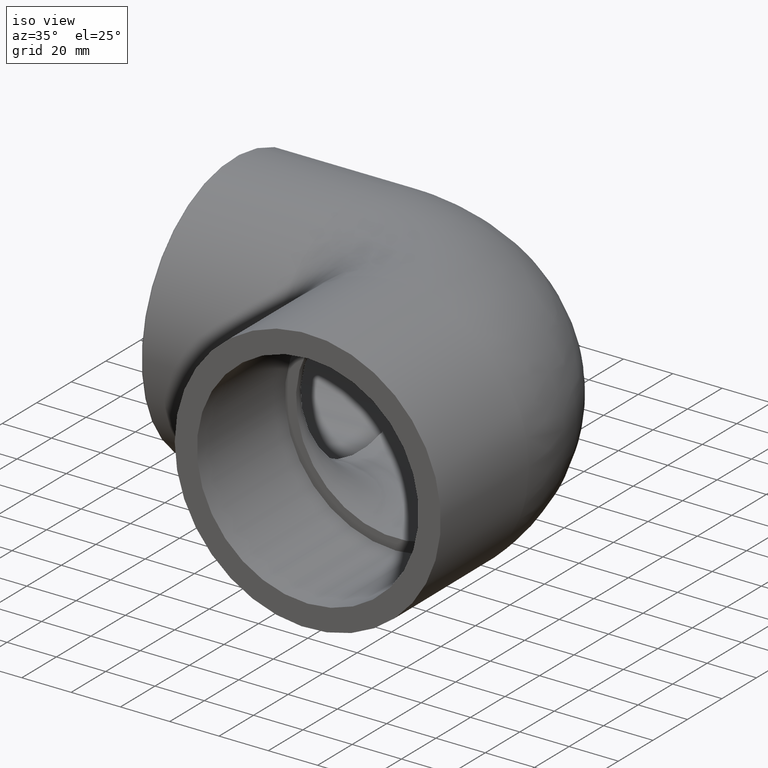
[diagram: clean part render]
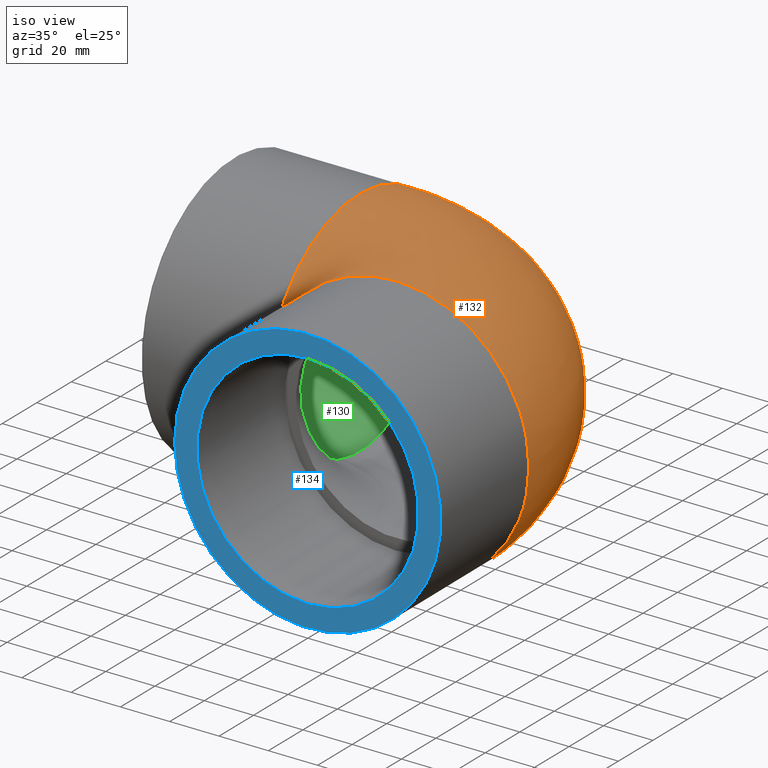
[diagram: same view with three faces highlighted in distinct colors, each labeled with its STEP entity id]
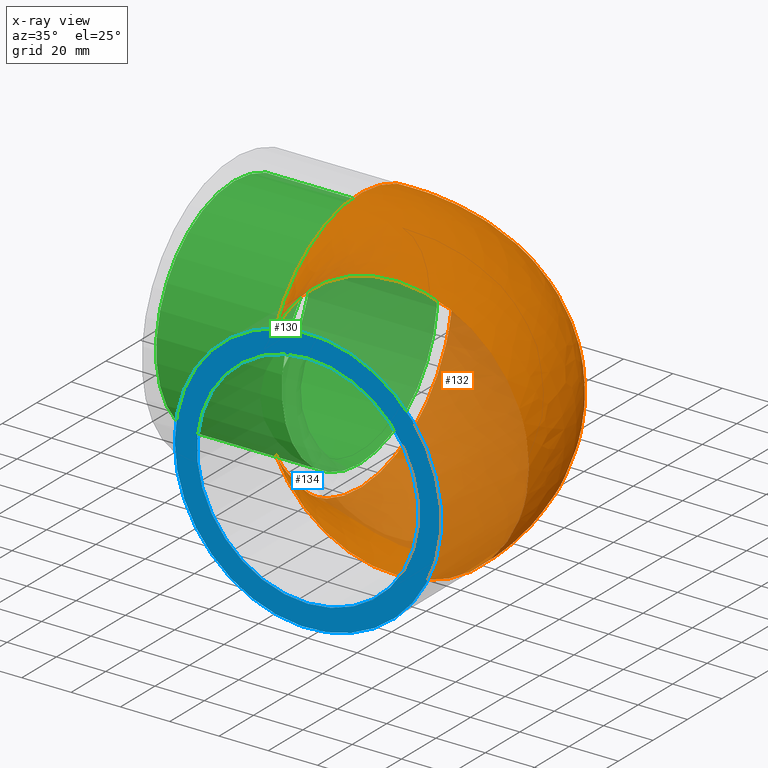
[diagram: x-ray of the same camera — body ghosted, the three highlighted faces saturated]
A machine part, iso view with three faces highlighted in distinct colors.
The next image is the same camera in x-ray (body ghosted, the three faces saturated) — at least one of them is partly hidden behind the body in this view.
Their STEP definitions:

[orange] entity #132 — the highlighted face is a freeform B-spline surface patch.
#16=(
BOUNDED_SURFACE()
B_SPLINE_SURFACE(2,2,((#226,#227,#228),(#229,#230,#231),(#232,#233,#234),
(#235,#236,#237),(#238,#239,#240),(#241,#242,#243),(#244,#245,#246),(#247,
#248,#249),(#250,#251,#252)),.UNSPECIFIED.,.F.,.F.,.F.)
B_SPLINE_SURFACE_WITH_KNOTS((3,2,2,2,3),(3,3),(-2.70786956697825,-1.35393478348913,
0.,1.35393478348913,2.70786956697825),(1.5707963267949,3.14159265358979),
 .UNSPECIFIED.)
GEOMETRIC_REPRESENTATION_ITEM()
RATIONAL_B_SPLINE_SURFACE(((1.,0.707106781186548,1.),(0.779476023189927,
0.55117278176992,0.779476023189927),(1.,0.707106781186548,1.),(0.779476023189928,
0.551172781769921,0.779476023189928),(1.,0.707106781186548,1.),(0.779476023189928,
0.551172781769921,0.779476023189928),(1.,0.707106781186548,1.),(0.779476023189927,
0.55117278176992,0.779476023189927),(1.,0.707106781186548,1.)))
REPRESENTATION_ITEM('')
SURFACE()
);
#40=FACE_OUTER_BOUND('',#56,.T.);
#56=EDGE_LOOP('',(#111,#112));
#73=CIRCLE('',#151,54.);
#74=CIRCLE('',#152,54.);
#84=VERTEX_POINT('',#253);
#85=VERTEX_POINT('',#254);
#95=EDGE_CURVE('',#84,#85,#73,.T.);
#96=EDGE_CURVE('',#85,#84,#74,.T.);
#111=ORIENTED_EDGE('',*,*,#95,.T.);
#112=ORIENTED_EDGE('',*,*,#96,.T.);
#132=ADVANCED_FACE('',(#40),#16,.F.);
#151=AXIS2_PLACEMENT_3D('',#255,#186,#187);
#152=AXIS2_PLACEMENT_3D('',#256,#188,#189);
#186=DIRECTION('center_axis',(1.,0.,0.));
#187=DIRECTION('ref_axis',(0.,0.,-1.));
#188=DIRECTION('center_axis',(6.12323399573677E-17,1.,0.));
#189=DIRECTION('ref_axis',(0.,0.,-1.));
#226=CARTESIAN_POINT('Ctrl Pts',(-49.,-49.,22.6936114358204));
#227=CARTESIAN_POINT('Ctrl Pts',(-49.,-49.,22.6936114358204));
#228=CARTESIAN_POINT('Ctrl Pts',(-49.,-49.,22.6936114358204));
#229=CARTESIAN_POINT('Ctrl Pts',(-49.,-30.7620999227556,62.0728484652515));
#230=CARTESIAN_POINT('Ctrl Pts',(-30.7620999227556,-30.7620999227556,62.0728484652515));
#231=CARTESIAN_POINT('Ctrl Pts',(-30.7620999227556,-49.,62.0728484652515));
#232=CARTESIAN_POINT('Ctrl Pts',(-49.,11.6189500386222,52.7351874937408));
#233=CARTESIAN_POINT('Ctrl Pts',(11.6189500386222,11.6189500386222,52.7351874937408));
#234=CARTESIAN_POINT('Ctrl Pts',(11.6189500386222,-49.,52.7351874937408));
#235=CARTESIAN_POINT('Ctrl Pts',(-49.,54.,43.3975265222302));
#236=CARTESIAN_POINT('Ctrl Pts',(54.,54.,43.3975265222302));
#237=CARTESIAN_POINT('Ctrl Pts',(54.,-49.,43.3975265222302));
#238=CARTESIAN_POINT('Ctrl Pts',(-49.,54.,0.));
#239=CARTESIAN_POINT('Ctrl Pts',(54.,54.,0.));
#240=CARTESIAN_POINT('Ctrl Pts',(54.,-49.,0.));
#241=CARTESIAN_POINT('Ctrl Pts',(-49.,54.,-43.3975265222302));
#242=CARTESIAN_POINT('Ctrl Pts',(54.,54.,-43.3975265222302));
#243=CARTESIAN_POINT('Ctrl Pts',(54.,-49.,-43.3975265222302));
#244=CARTESIAN_POINT('Ctrl Pts',(-49.,11.6189500386222,-52.7351874937408));
#245=CARTESIAN_POINT('Ctrl Pts',(11.6189500386222,11.6189500386222,-52.7351874937408));
#246=CARTESIAN_POINT('Ctrl Pts',(11.6189500386222,-49.,-52.7351874937408));
#247=CARTESIAN_POINT('Ctrl Pts',(-49.,-30.7620999227556,-62.0728484652515));
#248=CARTESIAN_POINT('Ctrl Pts',(-30.7620999227556,-30.7620999227556,-62.0728484652515));
#249=CARTESIAN_POINT('Ctrl Pts',(-30.7620999227556,-49.,-62.0728484652515));
#250=CARTESIAN_POINT('Ctrl Pts',(-49.,-49.,-22.6936114358204));
#251=CARTESIAN_POINT('Ctrl Pts',(-49.,-49.,-22.6936114358204));
#252=CARTESIAN_POINT('Ctrl Pts',(-49.,-49.,-22.6936114358204));
#253=CARTESIAN_POINT('',(-49.,-49.,-22.6936114358204));
#254=CARTESIAN_POINT('',(-49.,-49.,22.6936114358204));
#255=CARTESIAN_POINT('Origin',(-49.,0.,0.));
#256=CARTESIAN_POINT('Origin',(-3.00038465791102E-15,-49.,0.));

[blue] entity #134 — the highlighted planar face has unit normal (-0, -1, 0).
#19=PLANE('',#156);
#31=FACE_BOUND('',#60,.T.);
#42=FACE_OUTER_BOUND('',#59,.T.);
#59=EDGE_LOOP('',(#116));
#60=EDGE_LOOP('',(#117));
#70=CIRCLE('',#145,45.);
#75=CIRCLE('',#155,54.);
#81=VERTEX_POINT('',#217);
#86=VERTEX_POINT('',#259);
#92=EDGE_CURVE('',#81,#81,#70,.T.);
#98=EDGE_CURVE('',#86,#86,#75,.T.);
#116=ORIENTED_EDGE('',*,*,#98,.F.);
#117=ORIENTED_EDGE('',*,*,#92,.T.);
#134=ADVANCED_FACE('',(#42,#31),#19,.T.);
#145=AXIS2_PLACEMENT_3D('',#218,#174,#175);
#155=AXIS2_PLACEMENT_3D('',#260,#194,#195);
#156=AXIS2_PLACEMENT_3D('',#261,#196,#197);
#174=DIRECTION('center_axis',(6.12323399573677E-17,1.,0.));
#175=DIRECTION('ref_axis',(0.,0.,-1.));
#194=DIRECTION('center_axis',(6.12323399573677E-17,1.,0.));
#195=DIRECTION('ref_axis',(0.,0.,-1.));
#196=DIRECTION('center_axis',(-6.12323399573677E-17,-1.,0.));
#197=DIRECTION('ref_axis',(0.,0.,1.));
#217=CARTESIAN_POINT('',(-1.16341445918999E-14,-100.,45.));
#218=CARTESIAN_POINT('Origin',(-6.12323399573677E-15,-100.,0.));
#259=CARTESIAN_POINT('',(-54.,-100.,0.));
#260=CARTESIAN_POINT('Origin',(-6.12323399573677E-15,-100.,0.));
#261=CARTESIAN_POINT('Origin',(-54.,-100.,0.));

[green] entity #130 — the highlighted cylindrical surface (bore or boss wall) has radius 45 mm, axis along (1, 0, 0).
#22=CYLINDRICAL_SURFACE('',#147,45.);
#28=FACE_BOUND('',#53,.T.);
#38=FACE_OUTER_BOUND('',#52,.T.);
#52=EDGE_LOOP('',(#107));
#53=EDGE_LOOP('',(#108));
#71=CIRCLE('',#148,45.);
#72=CIRCLE('',#149,45.);
#82=VERTEX_POINT('',#221);
#83=VERTEX_POINT('',#223);
#93=EDGE_CURVE('',#82,#82,#71,.T.);
#94=EDGE_CURVE('',#83,#83,#72,.T.);
#107=ORIENTED_EDGE('',*,*,#93,.T.);
#108=ORIENTED_EDGE('',*,*,#94,.F.);
#130=ADVANCED_FACE('',(#38,#28),#22,.F.);
#147=AXIS2_PLACEMENT_3D('',#220,#178,#179);
#148=AXIS2_PLACEMENT_3D('',#222,#180,#181);
#149=AXIS2_PLACEMENT_3D('',#224,#182,#183);
#178=DIRECTION('center_axis',(1.,0.,0.));
#179=DIRECTION('ref_axis',(0.,0.,-1.));
#180=DIRECTION('center_axis',(1.,0.,0.));
#181=DIRECTION('ref_axis',(0.,0.,-1.));
#182=DIRECTION('center_axis',(1.,0.,0.));
#183=DIRECTION('ref_axis',(0.,0.,-1.));
#220=CARTESIAN_POINT('Origin',(-100.,0.,0.));
#221=CARTESIAN_POINT('',(-49.,5.51091059616309E-15,45.));
#222=CARTESIAN_POINT('Origin',(-49.,0.,0.));
#223=CARTESIAN_POINT('',(-100.,5.51091059616309E-15,45.));
#224=CARTESIAN_POINT('Origin',(-100.,0.,0.));